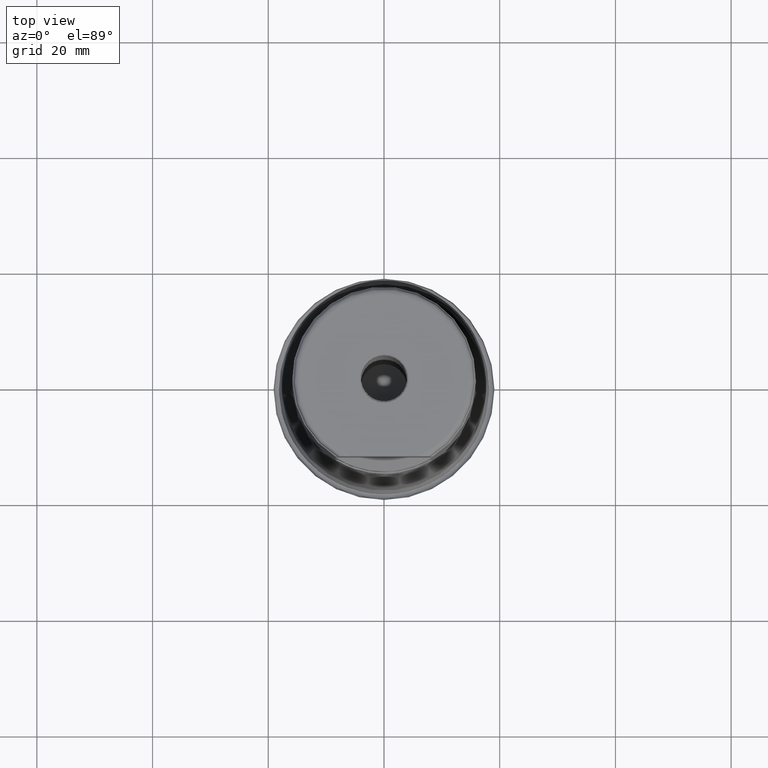
[diagram: clean part render]
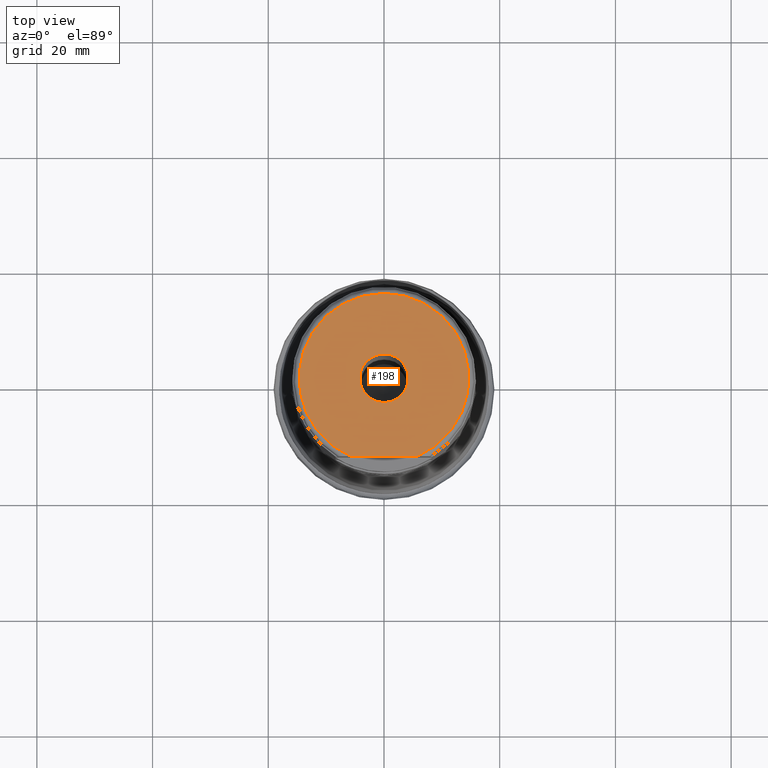
[diagram: same view with one face highlighted and labeled with its STEP entity id]
A machine part, top view. The second image highlights one B-rep face of the part: STEP entity #198.
In plain terms, the highlighted planar face has unit normal (0, 0, 1).
Its self-contained STEP definition (entity closure, byte-faithful):
#177=PLANE('',#900);
#198=ADVANCED_FACE('',(#294,#295),#177,.T.);
#268=LINE('',#1534,#281);
#281=VECTOR('',#1006,1.);
#294=FACE_BOUND('',#390,.T.);
#295=FACE_BOUND('',#391,.T.);
#390=EDGE_LOOP('',(#509));
#391=EDGE_LOOP('',(#510,#511));
#509=ORIENTED_EDGE('',*,*,#726,.T.);
#510=ORIENTED_EDGE('',*,*,#727,.T.);
#511=ORIENTED_EDGE('',*,*,#728,.T.);
#659=VERTEX_POINT('',#1530);
#660=VERTEX_POINT('',#1532);
#661=VERTEX_POINT('',#1533);
#726=EDGE_CURVE('',#659,#659,#786,.T.);
#727=EDGE_CURVE('',#660,#661,#787,.T.);
#728=EDGE_CURVE('',#661,#660,#268,.T.);
#786=CIRCLE('',#898,4.2);
#787=CIRCLE('',#899,14.675);
#898=AXIS2_PLACEMENT_3D('',#1529,#1002,#1003);
#899=AXIS2_PLACEMENT_3D('',#1531,#1004,#1005);
#900=AXIS2_PLACEMENT_3D('',#1535,#1007,#1008);
#1002=DIRECTION('',(0.,-1.17145536458252E-15,-1.));
#1003=DIRECTION('',(0.,-1.,0.));
#1004=DIRECTION('',(0.,1.17145536458252E-15,1.));
#1005=DIRECTION('',(0.,-1.,9.45675489459248E-16));
#1006=DIRECTION('',(1.,-7.17309531289991E-32,-6.12323399573676E-17));
#1007=DIRECTION('',(0.,1.17145536458252E-15,1.));
#1008=DIRECTION('',(0.,-1.,1.16573417585641E-15));
#1529=CARTESIAN_POINT('',(0.,1.33897348171783E-13,114.3));
#1530=CARTESIAN_POINT('',(0.,-4.19999999999987,114.3));
#1531=CARTESIAN_POINT('',(0.,1.33897348171783E-13,114.3));
#1532=CARTESIAN_POINT('',(5.78322282468843,-13.4873999999999,114.3));
#1533=CARTESIAN_POINT('',(-5.78322282468864,-13.4873999999999,114.3));
#1534=CARTESIAN_POINT('',(-17.5,-13.4873999999999,114.3));
#1535=CARTESIAN_POINT('',(0.,1.33897348171783E-13,114.3));